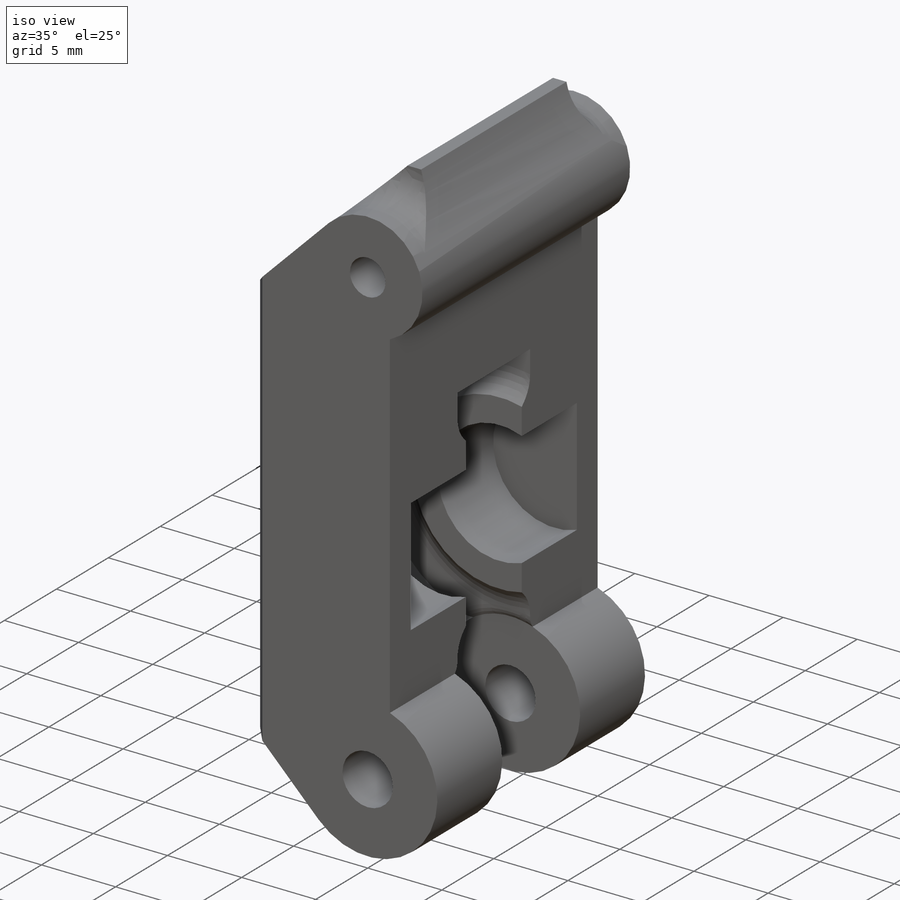
[diagram: iso view]
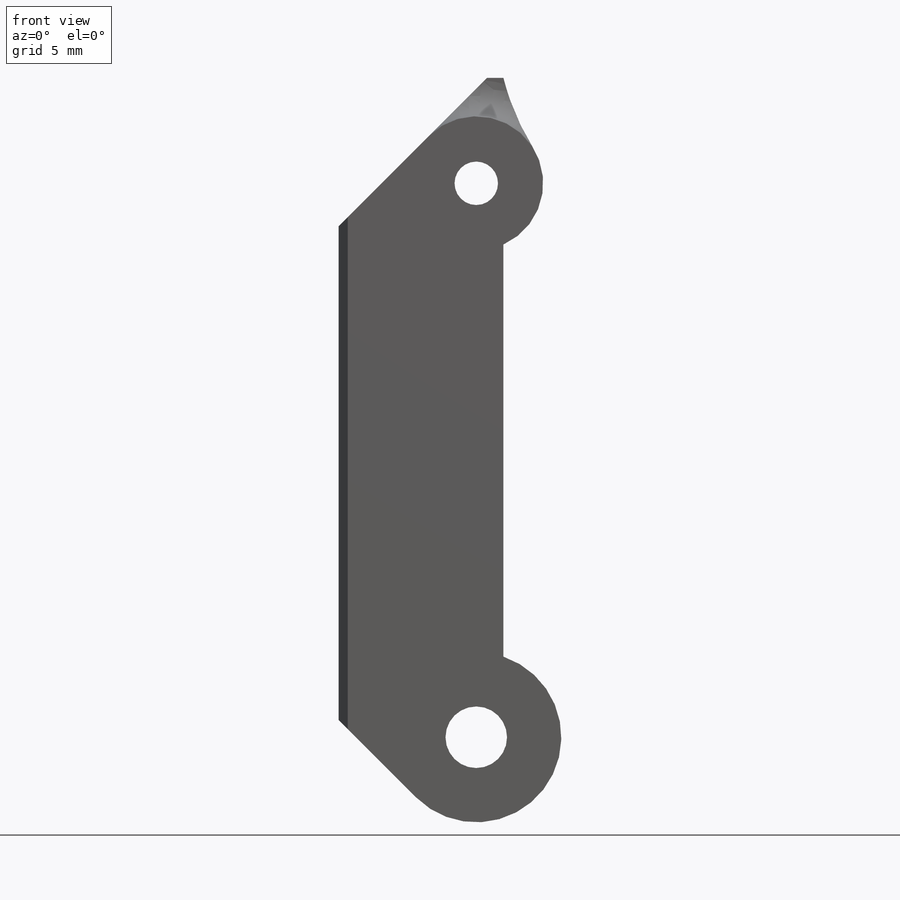
[diagram: front view]
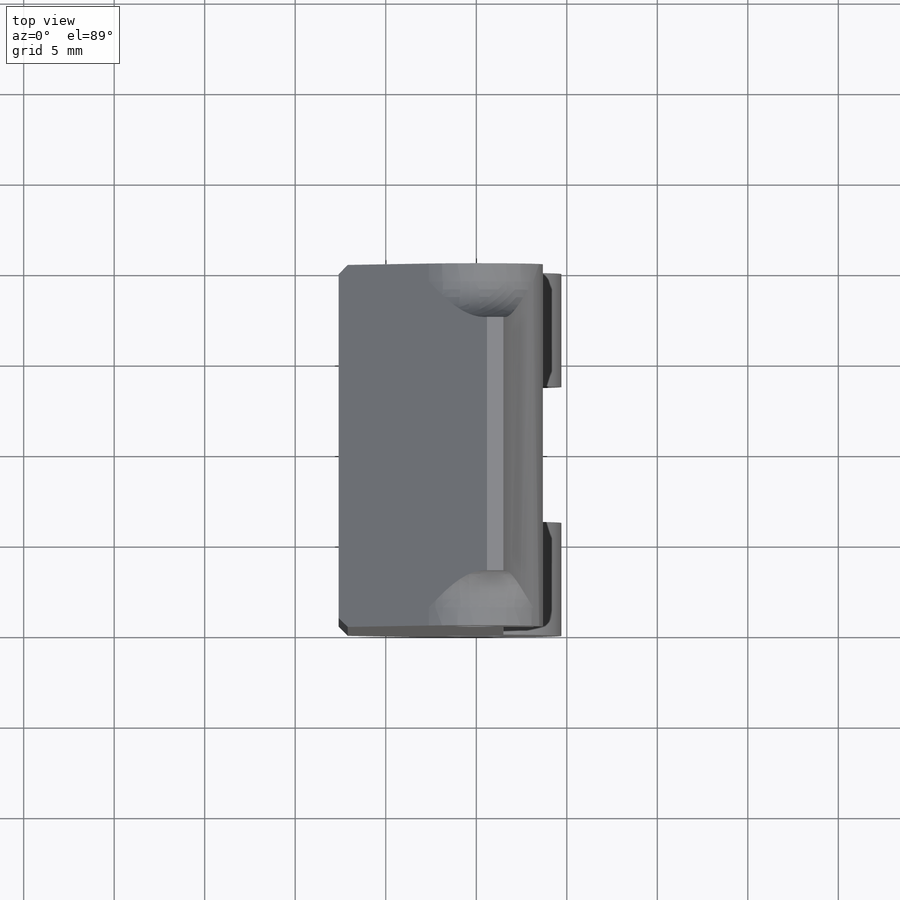
[diagram: top view]
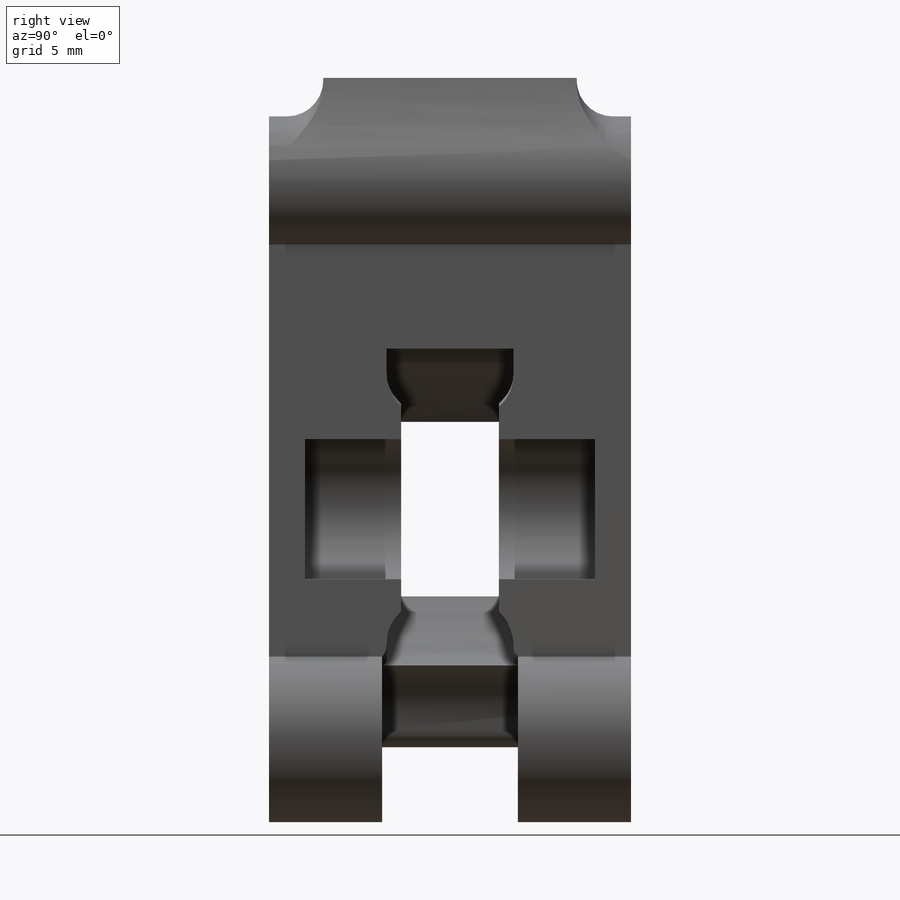
[diagram: right view]
SOLIDWORKS PART (.sldprt)
format: sldprt  version: not decoded by parser v0  size: 420,864 bytes
history: native  units: mm
features: sketch x9, fillet x7, cut_extrude x5, extrude x4, chamfer x2, material x1 (+12 scaffold rows collapsed)
feature tree (40):
  scaffold x12  (default folders/planes/origin — collapsed)
  material  "Material <not specified>"
  sketch  "Sketch1"  dims[c1.D1=~13.305659mm c1.D2=18.0mm c1.D3=8.3mm c1.D4=3.4mm c1.D12=2.4mm c1.D14=24.0mm c2.D1=12.6mm c2.D6=1.5mm c2.D7=7.6mm c2.D8=~27.886675mm c3.D8=135.0deg c3.D9=16.0mm c3.D13=18.0mm c3.D14=~3.738952mm c4.D9=~5.190786mm c5.D9=135.0deg c5.D14=~11.03747mm c5.D15=13.375mm c5.D16=~5.826474mm c5.D17=~0.764695mm c5.D5=2.0mm c5.D10=1.0mm c5.D11=1.5mm]
  extrude  "Main Body"  Depth=10mm
  cut_extrude  "Bearing Recess"  [1 undecoded]
  sketch  "Sketch1<4>"  dims[D1=3.5mm D2=3.5mm]
  cut_extrude  "Pin Recess"  [1 undecoded]
  sketch  "Sketch1<5>"  dims[D1=8.0mm D2=8.0mm]
  cut_extrude  "Inner Race Seat"  [1 undecoded]
  sketch  "Sketch1<6>"  dims[D1=2.7mm D2=2.7mm]
  cut_extrude  "Hinge Slot"  [1 undecoded]
  sketch  "Sketch1<7>"  dims[D1=3.75mm D2=3.75mm]
  chamfer  "Race Chamfer"  Distance=1mm Angle=45deg
  extrude  "Guide"  [1 undecoded]
  sketch  "Sketch1<8>"  dims[D1=8.0mm D2=8.0mm]
  sketch  "Sketch2"  dims[D1=3.75mm D2=~5.020334mm D3=2.0mm]
  cut_extrude  "Guide slot"  [1 undecoded]
  fillet  "Guide Side Fillet"  Radius=7mm
  fillet  "Bearing Race Fillet"  Radius=2mm
  fillet  "Inside End Fillets"  Radius=2mm
  extrude  "Thumb Lever"  [1 undecoded]
  sketch  "Sketch1<9>"
  fillet  "Thumb Lever Fillets"  Radius=2mm
  chamfer  "Chamfer1"  Distance=0.5mm Angle=45deg
  fillet  "Fillet1"  Radius=1mm
  fillet  "Fillet2"  Radius=1mm
  extrude  "Boss-Extrude1"  [1 undecoded]
  sketch  "Sketch1<10>"  dims[D1=7.0mm D2=7.0mm]
  fillet  "Fillet4"  Radius=2mm
decode coverage: 18 of 27 modeling features carry decoded parameters
note: ~ marks probable driven/reference dimensions
note: 8 parameter values undecoded
summary: no parameter record found for 8 features
note: suppression state not decoded; provenance and decode notes live in map.json
